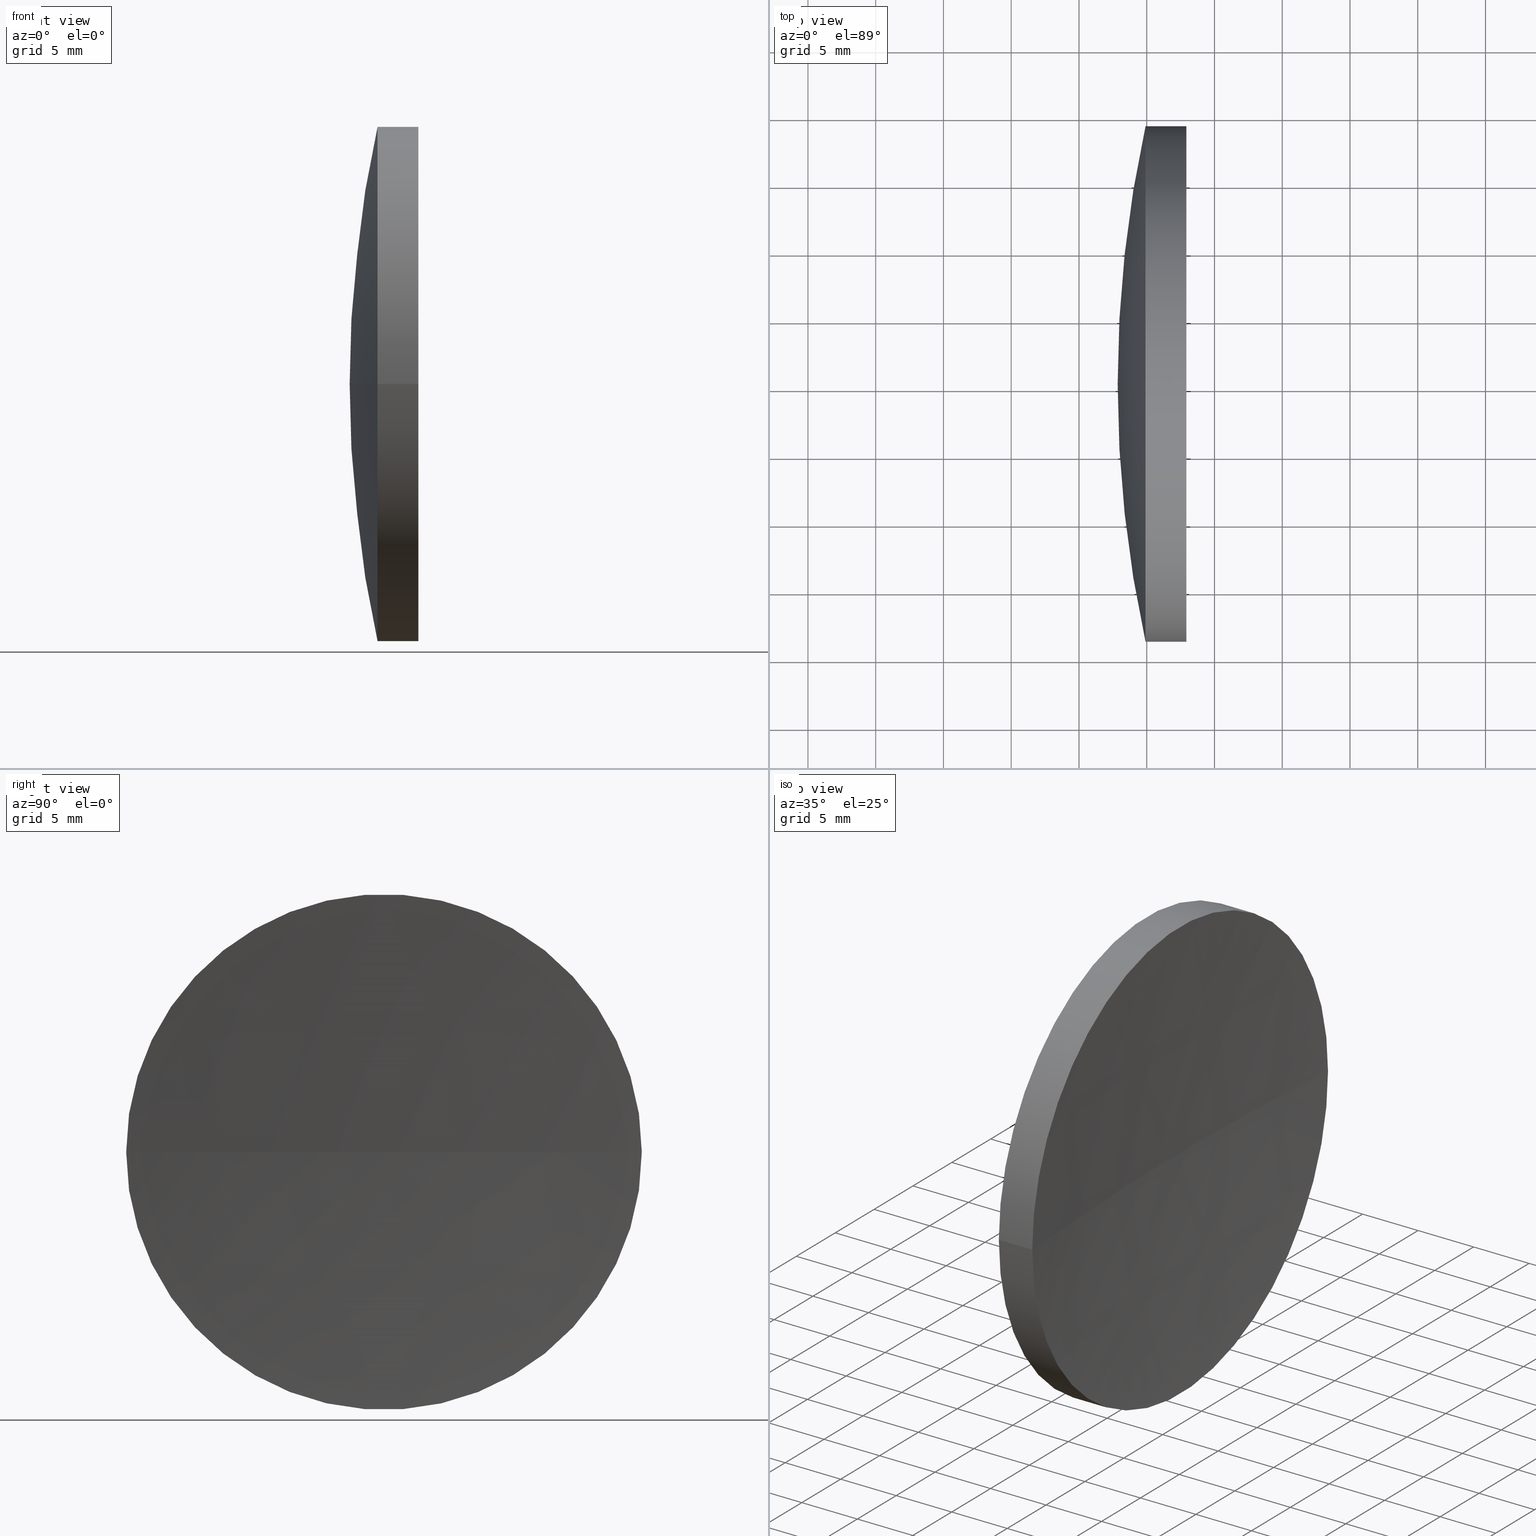
[diagram: canonical four-view strip — front | top / right | iso, engineering-drawing reading convention]
A machine part, canonical four-view strip (front | top / right | iso — engineering-drawing reading convention). The complete STEP part file that produces these views, byte-faithful:
ISO-10303-21;
HEADER;
FILE_DESCRIPTION (( 'STEP AP214' ),
    '1' );
FILE_NAME ('150018.STEP',
    '2019-07-04T08:18:26',
    ( '' ),
    ( '' ),
    'SwSTEP 2.0',
    'SolidWorks 2016',
    '' );
FILE_SCHEMA (( 'AUTOMOTIVE_DESIGN' ));
ENDSEC;

DATA;
#1 = STYLED_ITEM ( 'NONE', ( #82 ), #67 ) ;
#2 = ADVANCED_FACE ( 'NONE', ( #181 ), #135, .F. ) ;
#3 = DIRECTION ( 'NONE',  ( -0.0000000000000000000, 0.0000000000000000000, -1.000000000000000000 ) ) ;
#4 = CIRCLE ( 'NONE', #153, 88.99999999999997200 ) ;
#5 = CYLINDRICAL_SURFACE ( 'NONE', #134, 19.02499999999993800 ) ;
#6 =( NAMED_UNIT ( * ) SI_UNIT ( $, .STERADIAN. ) SOLID_ANGLE_UNIT ( ) );
#7 = DIRECTION ( 'NONE',  ( -8.496118506040342700E-032, 1.224646799147353200E-016, -1.000000000000000000 ) ) ;
#8 = CARTESIAN_POINT ( 'NONE',  ( 122.8554213155558000, 65.21684047094025500, 0.0000000000000000000 ) ) ;
#9 = CIRCLE ( 'NONE', #182, 236.0000000000000000 ) ;
#10 = DIRECTION ( 'NONE',  ( 0.0000000000000000000, 1.000000000000000000, 1.224646799147353000E-016 ) ) ;
#11 = SPHERICAL_SURFACE ( 'NONE', #48, 89.00000000000000000 ) ;
#12 = DIRECTION ( 'NONE',  ( -1.000000000000000000, -6.937607244762875000E-016, -0.0000000000000000000 ) ) ;
#13 = CARTESIAN_POINT ( 'NONE',  ( 211.8554213155557900, 65.21684047094031200, 0.0000000000000000000 ) ) ;
#14 = VERTEX_POINT ( 'NONE', #156 ) ;
#15 = DIRECTION ( 'NONE',  ( -7.056502275159892200E-016, 1.000000000000000000, 0.0000000000000000000 ) ) ;
#16 = AXIS2_PLACEMENT_3D ( 'NONE', #126, #172, #147 ) ;
#17 =( GEOMETRIC_REPRESENTATION_CONTEXT ( 3 ) GLOBAL_UNCERTAINTY_ASSIGNED_CONTEXT ( ( #86 ) ) GLOBAL_UNIT_ASSIGNED_CONTEXT ( ( #52, #40, #6 ) ) REPRESENTATION_CONTEXT ( 'NONE', 'WORKASPACE' ) );
#18 =( GEOMETRIC_REPRESENTATION_CONTEXT ( 3 ) GLOBAL_UNCERTAINTY_ASSIGNED_CONTEXT ( ( #151 ) ) GLOBAL_UNIT_ASSIGNED_CONTEXT ( ( #29, #145, #60 ) ) REPRESENTATION_CONTEXT ( 'NONE', 'WORKASPACE' ) );
#19 = COLOUR_RGB ( '',1.000000000000000000, 1.000000000000000000, 1.000000000000000000 ) ;
#20 = CIRCLE ( 'NONE', #84, 19.02499999999991000 ) ;
#21 = ORIENTED_EDGE ( 'NONE', *, *, #53, .T. ) ;
#22 = EDGE_CURVE ( 'NONE', #122, #14, #94, .T. ) ;
#23 = DIRECTION ( 'NONE',  ( -1.000000000000000000, -6.937607244762875000E-016, -0.0000000000000000000 ) ) ;
#24 = ORIENTED_EDGE ( 'NONE', *, *, #22, .T. ) ;
#25 = DIRECTION ( 'NONE',  ( -1.000000000000000000, -6.937607244762875000E-016, -0.0000000000000000000 ) ) ;
#26 = VERTEX_POINT ( 'NONE', #73 ) ;
#27 = AXIS2_PLACEMENT_3D ( 'NONE', #190, #75, #111 ) ;
#28 = FILL_AREA_STYLE ('',( #42 ) ) ;
#29 =( LENGTH_UNIT ( ) NAMED_UNIT ( * ) SI_UNIT ( .MILLI., .METRE. ) );
#30 = VERTEX_POINT ( 'NONE', #8 ) ;
#31 = CARTESIAN_POINT ( 'NONE',  ( 115.9444912979631700, 65.21684047094032600, 0.0000000000000000000 ) ) ;
#32 = DIRECTION ( 'NONE',  ( -1.000000000000000000, -6.937607244762875000E-016, -0.0000000000000000000 ) ) ;
#33 = ORIENTED_EDGE ( 'NONE', *, *, #74, .F. ) ;
#34 = VERTEX_POINT ( 'NONE', #189 ) ;
#35 = STYLED_ITEM ( 'NONE', ( #88 ), #132 ) ;
#36 = FACE_OUTER_BOUND ( 'NONE', #185, .T. ) ;
#37 = AXIS2_PLACEMENT_3D ( 'NONE', #96, #12, #127 ) ;
#38 = FILL_AREA_STYLE ('',( #155 ) ) ;
#39 =( NAMED_UNIT ( * ) PLANE_ANGLE_UNIT ( ) SI_UNIT ( $, .RADIAN. ) );
#40 =( NAMED_UNIT ( * ) PLANE_ANGLE_UNIT ( ) SI_UNIT ( $, .RADIAN. ) );
#41 = SURFACE_STYLE_FILL_AREA ( #38 ) ;
#42 = FILL_AREA_STYLE_COLOUR ( '', #19 ) ;
#43 = DIRECTION ( 'NONE',  ( -7.056502275159892200E-016, 1.000000000000000000, 0.0000000000000000000 ) ) ;
#44 = EDGE_CURVE ( 'NONE', #26, #34, #65, .T. ) ;
#45 = DIRECTION ( 'NONE',  ( -0.0000000000000000000, 0.0000000000000000000, 1.000000000000000000 ) ) ;
#46 = CARTESIAN_POINT ( 'NONE',  ( 124.9126276233814000, 65.21684047094032600, 0.0000000000000000000 ) ) ;
#47 = DIRECTION ( 'NONE',  ( 0.0000000000000000000, 0.0000000000000000000, -1.000000000000000000 ) ) ;
#48 = AXIS2_PLACEMENT_3D ( 'NONE', #92, #3, #184 ) ;
#49 = AXIS2_PLACEMENT_3D ( 'NONE', #123, #143, #10 ) ;
#50 = SPHERICAL_SURFACE ( 'NONE', #177, 236.0000000000000300 ) ;
#51 = ORIENTED_EDGE ( 'NONE', *, *, #44, .F. ) ;
#52 =( LENGTH_UNIT ( ) NAMED_UNIT ( * ) SI_UNIT ( .MILLI., .METRE. ) );
#53 = EDGE_CURVE ( 'NONE', #26, #129, #178, .T. ) ;
#54 = DIRECTION ( 'NONE',  ( 1.000000000000000000, 0.0000000000000000000, 0.0000000000000000000 ) ) ;
#55 = ORIENTED_EDGE ( 'NONE', *, *, #183, .F. ) ;
#56 = PRESENTATION_LAYER_ASSIGNMENT (  '', '', ( #35 ) ) ;
#57 = AXIS2_PLACEMENT_3D ( 'NONE', #171, #64, #175 ) ;
#58 = VECTOR ( 'NONE', #25, 1000.000000000000000 ) ;
#59 = SURFACE_STYLE_USAGE ( .BOTH. , #110 ) ;
#60 =( NAMED_UNIT ( * ) SI_UNIT ( $, .STERADIAN. ) SOLID_ANGLE_UNIT ( ) );
#61 = DIRECTION ( 'NONE',  ( 1.000000000000000000, 0.0000000000000000000, 0.0000000000000000000 ) ) ;
#62 = DIRECTION ( 'NONE',  ( -1.000000000000000000, -6.937607244762875000E-016, -0.0000000000000000000 ) ) ;
#63 = VECTOR ( 'NONE', #85, 1000.000000000000000 ) ;
#64 = DIRECTION ( 'NONE',  ( -0.0000000000000000000, 0.0000000000000000000, -1.000000000000000000 ) ) ;
#65 = CIRCLE ( 'NONE', #49, 236.0000000000000600 ) ;
#66 = MECHANICAL_DESIGN_GEOMETRIC_PRESENTATION_REPRESENTATION (  '', ( #35 ), #17 ) ;
#67 = MANIFOLD_SOLID_BREP ( '��ת1', #90 ) ;
#68 = ORIENTED_EDGE ( 'NONE', *, *, #102, .T. ) ;
#69 = CARTESIAN_POINT ( 'NONE',  ( 0.0000000000000000000, 0.0000000000000000000, 0.0000000000000000000 ) ) ;
#70 =( NAMED_UNIT ( * ) SI_UNIT ( $, .STERADIAN. ) SOLID_ANGLE_UNIT ( ) );
#71 = ORIENTED_EDGE ( 'NONE', *, *, #22, .F. ) ;
#72 = COLOUR_RGB ( '',1.000000000000000000, 1.000000000000000000, 1.000000000000000000 ) ;
#73 = CARTESIAN_POINT ( 'NONE',  ( 127.9235157946422300, 46.19184047094010700, -2.329890535377837900E-015 ) ) ;
#74 = EDGE_CURVE ( 'NONE', #26, #122, #87, .T. ) ;
#75 = DIRECTION ( 'NONE',  ( -1.000000000000000000, -6.937607244762875000E-016, -0.0000000000000000000 ) ) ;
#76 = MECHANICAL_DESIGN_GEOMETRIC_PRESENTATION_REPRESENTATION (  '', ( #1 ), #18 ) ;
#77 = ORIENTED_EDGE ( 'NONE', *, *, #95, .T. ) ;
#78 = ADVANCED_FACE ( 'NONE', ( #120 ), #114, .T. ) ;
#79 = APPLICATION_PROTOCOL_DEFINITION ( 'draft international standard', 'automotive_design', 1998, #154 ) ;
#80 = CARTESIAN_POINT ( 'NONE',  ( 127.9235157946422300, 65.21684047094034000, 0.0000000000000000000 ) ) ;
#81 = DIRECTION ( 'NONE',  ( 0.0000000000000000000, 0.0000000000000000000, 1.000000000000000000 ) ) ;
#82 = PRESENTATION_STYLE_ASSIGNMENT (( #59 ) ) ;
#83 = CARTESIAN_POINT ( 'NONE',  ( 115.9444912979631800, 46.19184047094039200, 0.0000000000000000000 ) ) ;
#84 = AXIS2_PLACEMENT_3D ( 'NONE', #46, #32, #158 ) ;
#85 = DIRECTION ( 'NONE',  ( -1.000000000000000000, -6.937607244762875000E-016, -0.0000000000000000000 ) ) ;
#86 = UNCERTAINTY_MEASURE_WITH_UNIT (LENGTH_MEASURE( 1.000000000000000100E-005 ), #52, 'distance_accuracy_value', 'NONE');
#87 = CIRCLE ( 'NONE', #27, 19.02499999999996700 ) ;
#88 = PRESENTATION_STYLE_ASSIGNMENT (( #152 ) ) ;
#89 = ORIENTED_EDGE ( 'NONE', *, *, #183, .T. ) ;
#90 = CLOSED_SHELL ( 'NONE', ( #78, #149, #2, #136, #137, #180 ) ) ;
#91 = DIRECTION ( 'NONE',  ( 0.0000000000000000000, 1.000000000000000000, 1.224646799147353000E-016 ) ) ;
#92 = CARTESIAN_POINT ( 'NONE',  ( 211.8554213155557900, 65.21684047094031200, 0.0000000000000000000 ) ) ;
#93 = ORIENTED_EDGE ( 'NONE', *, *, #164, .T. ) ;
#94 = LINE ( 'NONE', #125, #63 ) ;
#95 = EDGE_CURVE ( 'NONE', #122, #34, #9, .T. ) ;
#96 = CARTESIAN_POINT ( 'NONE',  ( 115.9444912979631700, 65.21684047094032600, 0.0000000000000000000 ) ) ;
#97 = EDGE_LOOP ( 'NONE', ( #33, #105, #146 ) ) ;
#98 = FACE_OUTER_BOUND ( 'NONE', #191, .T. ) ;
#99 = CARTESIAN_POINT ( 'NONE',  ( 363.1554213155557700, 65.21684047094024100, 0.0000000000000000000 ) ) ;
#100 = PRODUCT_DEFINITION_SHAPE ( 'NONE', 'NONE',  #176 ) ;
#101 = ORIENTED_EDGE ( 'NONE', *, *, #116, .F. ) ;
#102 = EDGE_CURVE ( 'NONE', #14, #30, #4, .T. ) ;
#103 = ORIENTED_EDGE ( 'NONE', *, *, #53, .F. ) ;
#104 = PRODUCT_DEFINITION_FORMATION_WITH_SPECIFIED_SOURCE ( '�κ�', '', #117, .NOT_KNOWN. ) ;
#105 = ORIENTED_EDGE ( 'NONE', *, *, #44, .T. ) ;
#106 =( LENGTH_UNIT ( ) NAMED_UNIT ( * ) SI_UNIT ( .MILLI., .METRE. ) );
#107 = CARTESIAN_POINT ( 'NONE',  ( 363.1554213155557700, 65.21684047094024100, 0.0000000000000000000 ) ) ;
#108 = ORIENTED_EDGE ( 'NONE', *, *, #119, .T. ) ;
#109 = CIRCLE ( 'NONE', #16, 19.02499999999991000 ) ;
#110 = SURFACE_SIDE_STYLE ('',( #174 ) ) ;
#111 = DIRECTION ( 'NONE',  ( 0.0000000000000000000, -1.000000000000000000, 0.0000000000000000000 ) ) ;
#112 = CARTESIAN_POINT ( 'NONE',  ( 124.9126276233814100, 46.19184047094042000, 0.0000000000000000000 ) ) ;
#113 = UNCERTAINTY_MEASURE_WITH_UNIT (LENGTH_MEASURE( 1.000000000000000100E-005 ), #106, 'distance_accuracy_value', 'NONE');
#114 = SPHERICAL_SURFACE ( 'NONE', #57, 89.00000000000000000 ) ;
#115 = CIRCLE ( 'NONE', #166, 19.02499999999996700 ) ;
#116 = EDGE_CURVE ( 'NONE', #129, #14, #20, .T. ) ;
#117 = PRODUCT ( '150018', '150018', '', ( #167 ) ) ;
#118 = AXIS2_PLACEMENT_3D ( 'NONE', #139, #7, #91 ) ;
#119 = EDGE_CURVE ( 'NONE', #14, #129, #109, .T. ) ;
#120 = FACE_OUTER_BOUND ( 'NONE', #165, .T. ) ;
#121 = DIRECTION ( 'NONE',  ( 0.0000000000000000000, -1.000000000000000000, 0.0000000000000000000 ) ) ;
#122 = VERTEX_POINT ( 'NONE', #160 ) ;
#123 = CARTESIAN_POINT ( 'NONE',  ( 363.1554213155557700, 65.21684047094024100, 0.0000000000000000000 ) ) ;
#124 = ORIENTED_EDGE ( 'NONE', *, *, #119, .F. ) ;
#125 = CARTESIAN_POINT ( 'NONE',  ( 115.9444912979631500, 84.24184047094027500, 2.329890535377832000E-015 ) ) ;
#126 = CARTESIAN_POINT ( 'NONE',  ( 124.9126276233814000, 65.21684047094032600, 0.0000000000000000000 ) ) ;
#127 = DIRECTION ( 'NONE',  ( 7.294500818824967800E-016, -1.000000000000000000, 0.0000000000000000000 ) ) ;
#128 = DIRECTION ( 'NONE',  ( 1.000000000000000000, 0.0000000000000000000, 0.0000000000000000000 ) ) ;
#129 = VERTEX_POINT ( 'NONE', #112 ) ;
#130 = CIRCLE ( 'NONE', #118, 89.00000000000000000 ) ;
#131 = DIRECTION ( 'NONE',  ( 7.294500818824967800E-016, -1.000000000000000000, 0.0000000000000000000 ) ) ;
#132 = ADVANCED_BREP_SHAPE_REPRESENTATION ( '150018', ( #67, #142 ), #163 ) ;
#133 = ORIENTED_EDGE ( 'NONE', *, *, #74, .T. ) ;
#134 = AXIS2_PLACEMENT_3D ( 'NONE', #31, #62, #131 ) ;
#135 = SPHERICAL_SURFACE ( 'NONE', #148, 236.0000000000000300 ) ;
#136 = ADVANCED_FACE ( 'NONE', ( #98 ), #50, .F. ) ;
#137 = ADVANCED_FACE ( 'NONE', ( #192 ), #5, .T. ) ;
#138 = APPLICATION_CONTEXT ( 'automotive_design' ) ;
#139 = CARTESIAN_POINT ( 'NONE',  ( 211.8554213155557900, 65.21684047094031200, 0.0000000000000000000 ) ) ;
#140 = ORIENTED_EDGE ( 'NONE', *, *, #116, .T. ) ;
#141 = DIRECTION ( 'NONE',  ( 0.0000000000000000000, 0.0000000000000000000, -1.000000000000000000 ) ) ;
#142 = AXIS2_PLACEMENT_3D ( 'NONE', #69, #81, #54 ) ;
#143 = DIRECTION ( 'NONE',  ( -8.496118506040342700E-032, 1.224646799147353200E-016, -1.000000000000000000 ) ) ;
#144 = PRESENTATION_LAYER_ASSIGNMENT (  '', '', ( #1 ) ) ;
#145 =( NAMED_UNIT ( * ) PLANE_ANGLE_UNIT ( ) SI_UNIT ( $, .RADIAN. ) );
#146 = ORIENTED_EDGE ( 'NONE', *, *, #95, .F. ) ;
#147 = DIRECTION ( 'NONE',  ( 7.294500818824978600E-016, -1.000000000000000000, 0.0000000000000000000 ) ) ;
#148 = AXIS2_PLACEMENT_3D ( 'NONE', #107, #141, #43 ) ;
#149 = ADVANCED_FACE ( 'NONE', ( #36 ), #188, .T. ) ;
#150 = ORIENTED_EDGE ( 'NONE', *, *, #102, .F. ) ;
#151 = UNCERTAINTY_MEASURE_WITH_UNIT (LENGTH_MEASURE( 1.000000000000000100E-005 ), #29, 'distance_accuracy_value', 'NONE');
#152 = SURFACE_STYLE_USAGE ( .BOTH. , #169 ) ;
#153 = AXIS2_PLACEMENT_3D ( 'NONE', #13, #45, #61 ) ;
#154 = APPLICATION_CONTEXT ( 'automotive_design' ) ;
#155 = FILL_AREA_STYLE_COLOUR ( '', #72 ) ;
#156 = CARTESIAN_POINT ( 'NONE',  ( 124.9126276233813800, 84.24184047094024700, 2.329890535377829300E-015 ) ) ;
#157 = PRODUCT_DEFINITION_CONTEXT ( 'detailed design', #138, 'design' ) ;
#158 = DIRECTION ( 'NONE',  ( 7.294500818824978600E-016, -1.000000000000000000, 0.0000000000000000000 ) ) ;
#159 = CARTESIAN_POINT ( 'NONE',  ( 363.1554213155557700, 65.21684047094024100, 0.0000000000000000000 ) ) ;
#160 = CARTESIAN_POINT ( 'NONE',  ( 127.9235157946422300, 84.24184047094033200, 0.0000000000000000000 ) ) ;
#161 = SHAPE_DEFINITION_REPRESENTATION ( #100, #132 ) ;
#162 = PRODUCT_RELATED_PRODUCT_CATEGORY ( 'part', '', ( #117 ) ) ;
#163 =( GEOMETRIC_REPRESENTATION_CONTEXT ( 3 ) GLOBAL_UNCERTAINTY_ASSIGNED_CONTEXT ( ( #113 ) ) GLOBAL_UNIT_ASSIGNED_CONTEXT ( ( #106, #39, #70 ) ) REPRESENTATION_CONTEXT ( 'NONE', 'WORKASPACE' ) );
#164 = EDGE_CURVE ( 'NONE', #122, #26, #115, .T. ) ;
#165 = EDGE_LOOP ( 'NONE', ( #108, #89, #150 ) ) ;
#166 = AXIS2_PLACEMENT_3D ( 'NONE', #80, #23, #121 ) ;
#167 = PRODUCT_CONTEXT ( 'NONE', #154, 'mechanical' ) ;
#168 = FACE_OUTER_BOUND ( 'NONE', #179, .T. ) ;
#169 = SURFACE_SIDE_STYLE ('',( #41 ) ) ;
#170 = EDGE_LOOP ( 'NONE', ( #71, #93, #21, #124 ) ) ;
#171 = CARTESIAN_POINT ( 'NONE',  ( 211.8554213155557900, 65.21684047094031200, 0.0000000000000000000 ) ) ;
#172 = DIRECTION ( 'NONE',  ( -1.000000000000000000, -6.937607244762875000E-016, -0.0000000000000000000 ) ) ;
#173 = DIRECTION ( 'NONE',  ( 0.0000000000000000000, -0.0000000000000000000, 1.000000000000000000 ) ) ;
#174 = SURFACE_STYLE_FILL_AREA ( #28 ) ;
#175 = DIRECTION ( 'NONE',  ( -6.237208003512115800E-016, 1.000000000000000000, 0.0000000000000000000 ) ) ;
#176 = PRODUCT_DEFINITION ( 'δ֪', '', #104, #157 ) ;
#177 = AXIS2_PLACEMENT_3D ( 'NONE', #159, #47, #15 ) ;
#178 = LINE ( 'NONE', #83, #58 ) ;
#179 = EDGE_LOOP ( 'NONE', ( #55, #140, #68 ) ) ;
#180 = ADVANCED_FACE ( 'NONE', ( #168 ), #11, .T. ) ;
#181 = FACE_OUTER_BOUND ( 'NONE', #97, .T. ) ;
#182 = AXIS2_PLACEMENT_3D ( 'NONE', #99, #173, #128 ) ;
#183 = EDGE_CURVE ( 'NONE', #129, #30, #130, .T. ) ;
#184 = DIRECTION ( 'NONE',  ( -6.237208003512115800E-016, 1.000000000000000000, 0.0000000000000000000 ) ) ;
#185 = EDGE_LOOP ( 'NONE', ( #133, #24, #101, #103 ) ) ;
#186 = APPLICATION_PROTOCOL_DEFINITION ( 'draft international standard', 'automotive_design', 1998, #138 ) ;
#187 = ORIENTED_EDGE ( 'NONE', *, *, #164, .F. ) ;
#188 = CYLINDRICAL_SURFACE ( 'NONE', #37, 19.02499999999993800 ) ;
#189 = CARTESIAN_POINT ( 'NONE',  ( 127.1554213155557700, 65.21684047094008500, 0.0000000000000000000 ) ) ;
#190 = CARTESIAN_POINT ( 'NONE',  ( 127.9235157946422300, 65.21684047094034000, 0.0000000000000000000 ) ) ;
#191 = EDGE_LOOP ( 'NONE', ( #51, #187, #77 ) ) ;
#192 = FACE_OUTER_BOUND ( 'NONE', #170, .T. ) ;
ENDSEC;
END-ISO-10303-21;
